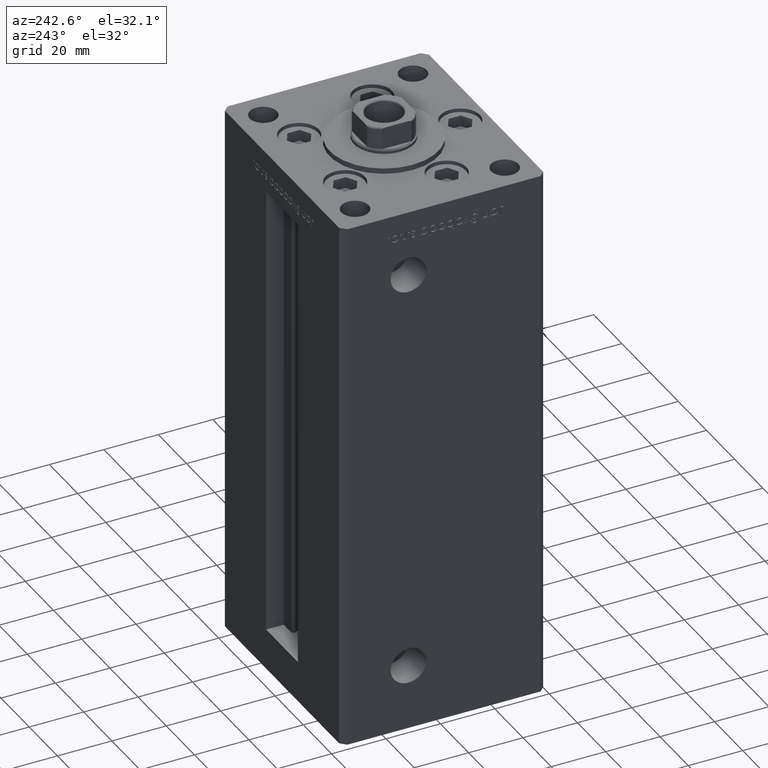
[diagram: clean part render]
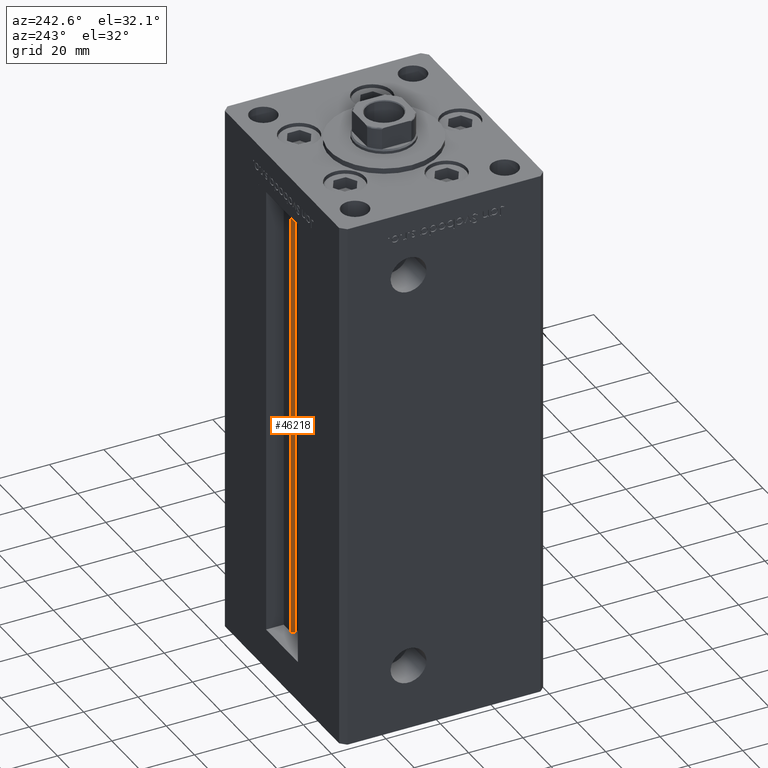
[diagram: same view with one face highlighted and labeled with its STEP entity id]
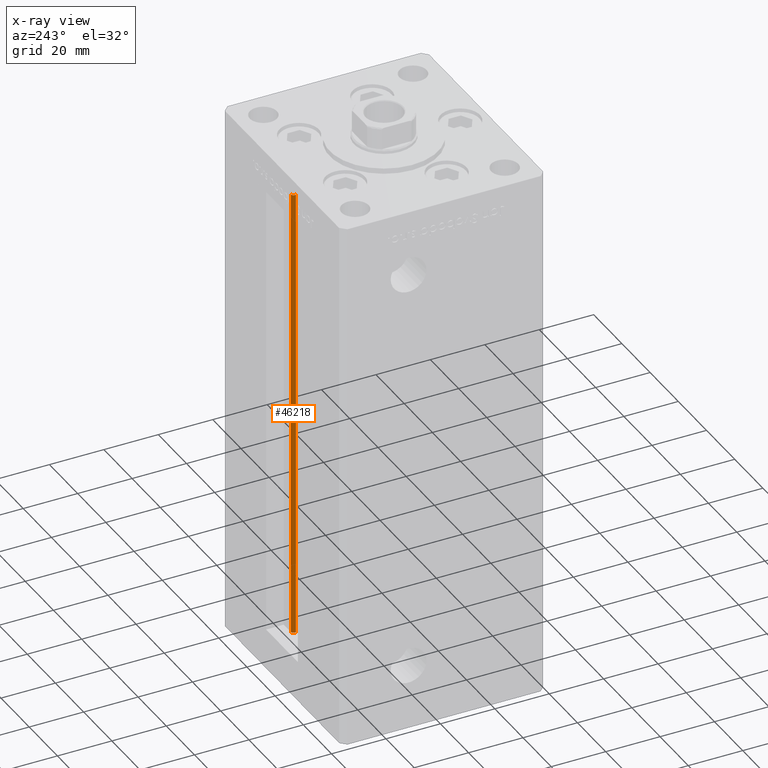
[diagram: x-ray of the same camera — body ghosted, the highlighted face saturated]
A machine part, auxiliary view. The second image highlights one B-rep face of the part: STEP entity #46218.
The next image is the same camera in x-ray: the body ghosted, the highlighted face saturated — about 0% of this face is hidden behind the body in this view.
In plain terms, the highlighted cylindrical surface (edge-blend (fillet) strip) has radius 0.9333 mm, axis along (0, 0, 1).
Its self-contained STEP definition (entity closure, byte-faithful):
#2973 = CARTESIAN_POINT ( 'NONE',  ( 5.375042956467943611, 29.59999999999899245, 0.000000000000000000 ) ) ;
#3593 = ORIENTED_EDGE ( 'NONE', *, *, #36868, .F. ) ;
#4078 = CARTESIAN_POINT ( 'NONE',  ( 6.183333333333999704, 30.99999999999999289, 168.5000000000000000 ) ) ;
#4678 = CARTESIAN_POINT ( 'NONE',  ( 5.375042956467944499, 29.59999999999898890, 168.5000000000000000 ) ) ;
#8085 = CARTESIAN_POINT ( 'NONE',  ( 6.183333333333999704, 30.06666666666599141, 0.000000000000000000 ) ) ;
#8646 = ORIENTED_EDGE ( 'NONE', *, *, #44012, .T. ) ;
#8768 = DIRECTION ( 'NONE',  ( -0.000000000000000000, -0.000000000000000000, -1.000000000000000000 ) ) ;
#9245 = LINE ( 'NONE', #25299, #46949 ) ;
#9546 = DIRECTION ( 'NONE',  ( 0.000000000000000000, 0.000000000000000000, -1.000000000000000000 ) ) ;
#10806 = EDGE_CURVE ( 'NONE', #19711, #44407, #16869, .T. ) ;
#13096 = AXIS2_PLACEMENT_3D ( 'NONE', #17949, #8768, #24820 ) ;
#14021 = CARTESIAN_POINT ( 'NONE',  ( 6.183333333333999704, 30.99999999999999289, 0.000000000000000000 ) ) ;
#16480 = ORIENTED_EDGE ( 'NONE', *, *, #10806, .T. ) ;
#16869 = CIRCLE ( 'NONE', #31126, 0.9333333333340015914 ) ;
#17949 = CARTESIAN_POINT ( 'NONE',  ( 6.183333333333999704, 30.06666666666599141, 0.000000000000000000 ) ) ;
#19711 = VERTEX_POINT ( 'NONE', #4678 ) ;
#20193 = DIRECTION ( 'NONE',  ( 1.000000000000000000, 0.000000000000000000, 0.000000000000000000 ) ) ;
#21278 = LINE ( 'NONE', #33645, #30434 ) ;
#21593 = EDGE_CURVE ( 'NONE', #26755, #44407, #21278, .T. ) ;
#24820 = DIRECTION ( 'NONE',  ( 1.000000000000000000, 0.000000000000000000, 0.000000000000000000 ) ) ;
#25000 = AXIS2_PLACEMENT_3D ( 'NONE', #8085, #27821, #20193 ) ;
#25299 = CARTESIAN_POINT ( 'NONE',  ( 5.375042956467943611, 29.59999999999899245, 0.000000000000000000 ) ) ;
#25340 = CARTESIAN_POINT ( 'NONE',  ( 6.183333333333999704, 30.06666666666599141, 168.5000000000000000 ) ) ;
#26755 = VERTEX_POINT ( 'NONE', #14021 ) ;
#27821 = DIRECTION ( 'NONE',  ( -0.000000000000000000, -0.000000000000000000, 1.000000000000000000 ) ) ;
#30434 = VECTOR ( 'NONE', #50029, 1000.000000000000000 ) ;
#31126 = AXIS2_PLACEMENT_3D ( 'NONE', #25340, #9546, #36945 ) ;
#33645 = CARTESIAN_POINT ( 'NONE',  ( 6.183333333333999704, 30.99999999999999289, 0.000000000000000000 ) ) ;
#36523 = FACE_OUTER_BOUND ( 'NONE', #44416, .T. ) ;
#36868 = EDGE_CURVE ( 'NONE', #51692, #26755, #39158, .T. ) ;
#36945 = DIRECTION ( 'NONE',  ( 1.000000000000000000, 0.000000000000000000, 0.000000000000000000 ) ) ;
#39158 = CIRCLE ( 'NONE', #13096, 0.9333333333340015914 ) ;
#44012 = EDGE_CURVE ( 'NONE', #51692, #19711, #9245, .T. ) ;
#44407 = VERTEX_POINT ( 'NONE', #4078 ) ;
#44416 = EDGE_LOOP ( 'NONE', ( #46046, #3593, #8646, #16480 ) ) ;
#46046 = ORIENTED_EDGE ( 'NONE', *, *, #21593, .F. ) ;
#46218 = ADVANCED_FACE ( 'NONE', ( #36523 ), #51867, .T. ) ;
#46949 = VECTOR ( 'NONE', #49071, 1000.000000000000000 ) ;
#49071 = DIRECTION ( 'NONE',  ( -0.000000000000000000, -0.000000000000000000, 1.000000000000000000 ) ) ;
#50029 = DIRECTION ( 'NONE',  ( -0.000000000000000000, -0.000000000000000000, 1.000000000000000000 ) ) ;
#51692 = VERTEX_POINT ( 'NONE', #2973 ) ;
#51867 = CYLINDRICAL_SURFACE ( 'NONE', #25000, 0.9333333333340015914 ) ;